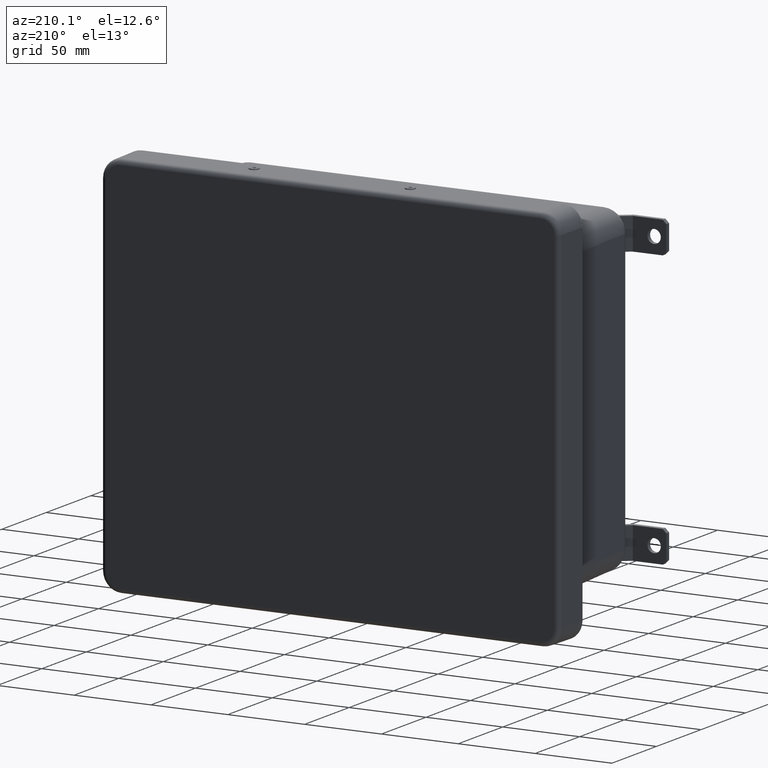
[diagram: clean part render]
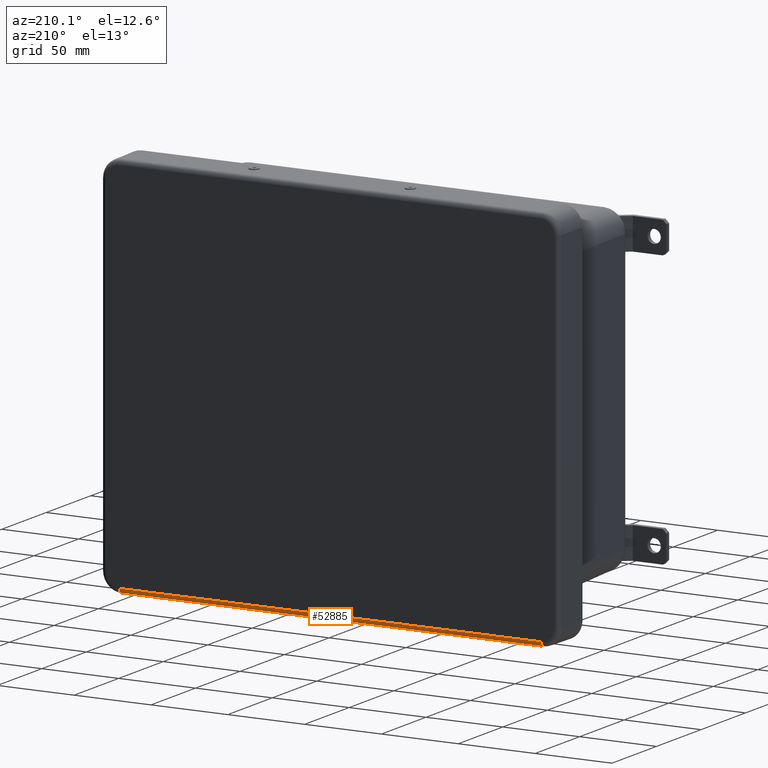
[diagram: same view with one face highlighted and labeled with its STEP entity id]
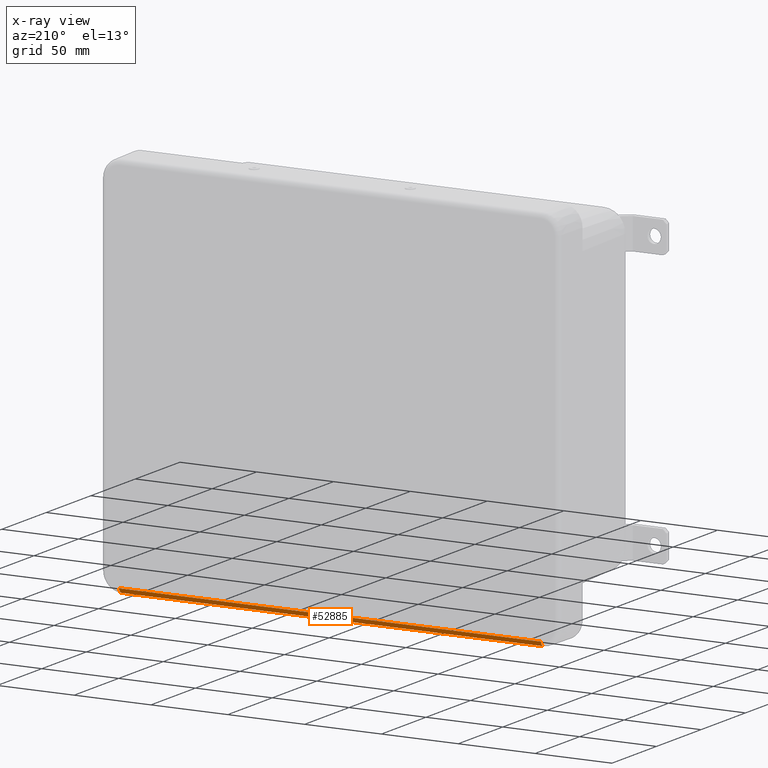
[diagram: x-ray of the same camera — body ghosted, the highlighted face saturated]
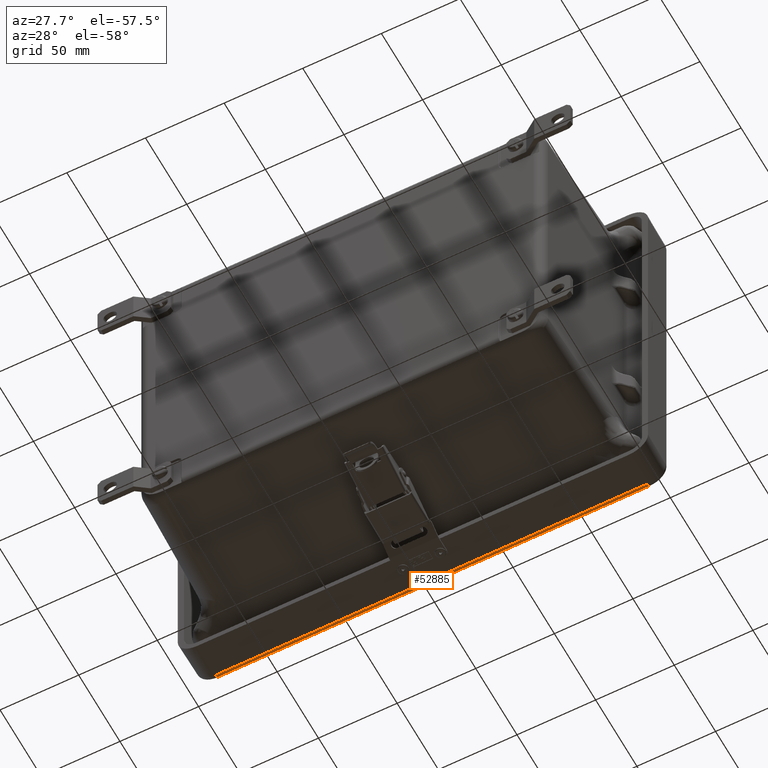
[diagram: same view with one face highlighted and labeled with its STEP entity id]
A machine part, auxiliary view. The second image highlights one B-rep face of the part: STEP entity #52885.
The next image is the same camera in x-ray: the body ghosted, the highlighted face saturated — about 0% of this face is hidden behind the body in this view.
A second angle (auxiliary view) of the same face is appended — the face is thin or edge-on in the first view.
In plain terms, the highlighted cylindrical surface (edge-blend (fillet) strip) has radius 3.175 mm, axis along (1, 0, 0).
Its self-contained STEP definition (entity closure, byte-faithful):
#7528 = CIRCLE ( 'NONE', #29600, 0.1249999999999999000 ) ;
#7843 = AXIS2_PLACEMENT_3D ( 'NONE', #26925, #32454, #59770 ) ;
#14177 = DIRECTION ( 'NONE',  ( 1.000000000000000000, -0.0000000000000000000, 0.0000000000000000000 ) ) ;
#16008 = CARTESIAN_POINT ( 'NONE',  ( 5.399999999999999500, 0.1228184491953397700, -4.933143804005088600 ) ) ;
#19038 = EDGE_CURVE ( 'NONE', #36926, #55478, #70930, .T. ) ;
#19546 = DIRECTION ( 'NONE',  ( 1.000000000000000000, -0.0000000000000000000, 0.0000000000000000000 ) ) ;
#20377 = LINE ( 'NONE', #32416, #62472 ) ;
#21996 = VERTEX_POINT ( 'NONE', #50166 ) ;
#23874 = EDGE_CURVE ( 'NONE', #55478, #21996, #20377, .T. ) ;
#26925 = CARTESIAN_POINT ( 'NONE',  ( -5.400000000000002100, 0.1249999999999999000, -4.808162842110539800 ) ) ;
#27856 = AXIS2_PLACEMENT_3D ( 'NONE', #27866, #66211, #33378 ) ;
#27866 = CARTESIAN_POINT ( 'NONE',  ( 5.399999999999999500, 0.1249999999999999000, -4.808162842110538900 ) ) ;
#29600 = AXIS2_PLACEMENT_3D ( 'NONE', #52455, #19546, #57970 ) ;
#32416 = CARTESIAN_POINT ( 'NONE',  ( -5.400000000000002100, 0.1228184491953397700, -4.933143804005088600 ) ) ;
#32454 = DIRECTION ( 'NONE',  ( -1.000000000000000000, 0.0000000000000000000, 0.0000000000000000000 ) ) ;
#33378 = DIRECTION ( 'NONE',  ( 0.0000000000000000000, 0.0000000000000000000, -1.000000000000000000 ) ) ;
#35212 = EDGE_CURVE ( 'NONE', #52835, #36926, #57974, .T. ) ;
#35789 = ORIENTED_EDGE ( 'NONE', *, *, #59200, .T. ) ;
#36926 = VERTEX_POINT ( 'NONE', #51429 ) ;
#38133 = DIRECTION ( 'NONE',  ( -1.000000000000000000, 0.0000000000000000000, 0.0000000000000000000 ) ) ;
#38994 = ORIENTED_EDGE ( 'NONE', *, *, #35212, .F. ) ;
#41528 = CARTESIAN_POINT ( 'NONE',  ( 5.399999999999999500, 0.0000000000000000000, -4.808162842110538900 ) ) ;
#41699 = ORIENTED_EDGE ( 'NONE', *, *, #23874, .F. ) ;
#50166 = CARTESIAN_POINT ( 'NONE',  ( -5.400000000000002100, 0.1228184491953397700, -4.933143804005088600 ) ) ;
#51429 = CARTESIAN_POINT ( 'NONE',  ( 5.399999999999999500, 0.0000000000000000000, -4.808162842110538900 ) ) ;
#52455 = CARTESIAN_POINT ( 'NONE',  ( -5.400000000000002100, 0.1249999999999999000, -4.808162842110539800 ) ) ;
#52835 = VERTEX_POINT ( 'NONE', #70614 ) ;
#52885 = ADVANCED_FACE ( 'NONE', ( #61343 ), #57925, .T. ) ;
#55478 = VERTEX_POINT ( 'NONE', #16008 ) ;
#57925 = CYLINDRICAL_SURFACE ( 'NONE', #7843, 0.1249999999999999000 ) ;
#57970 = DIRECTION ( 'NONE',  ( 0.0000000000000000000, 0.0000000000000000000, -1.000000000000000000 ) ) ;
#57974 = LINE ( 'NONE', #41528, #59684 ) ;
#59200 = EDGE_CURVE ( 'NONE', #52835, #21996, #7528, .T. ) ;
#59684 = VECTOR ( 'NONE', #14177, 39.37007874015748100 ) ;
#59731 = EDGE_LOOP ( 'NONE', ( #35789, #41699, #71038, #38994 ) ) ;
#59770 = DIRECTION ( 'NONE',  ( 0.0000000000000000000, 0.0000000000000000000, 1.000000000000000000 ) ) ;
#61343 = FACE_OUTER_BOUND ( 'NONE', #59731, .T. ) ;
#62472 = VECTOR ( 'NONE', #38133, 39.37007874015748100 ) ;
#66211 = DIRECTION ( 'NONE',  ( 1.000000000000000000, -0.0000000000000000000, 0.0000000000000000000 ) ) ;
#70614 = CARTESIAN_POINT ( 'NONE',  ( -5.400000000000002100, 0.0000000000000000000, -4.808162842110539800 ) ) ;
#70930 = CIRCLE ( 'NONE', #27856, 0.1249999999999999000 ) ;
#71038 = ORIENTED_EDGE ( 'NONE', *, *, #19038, .F. ) ;